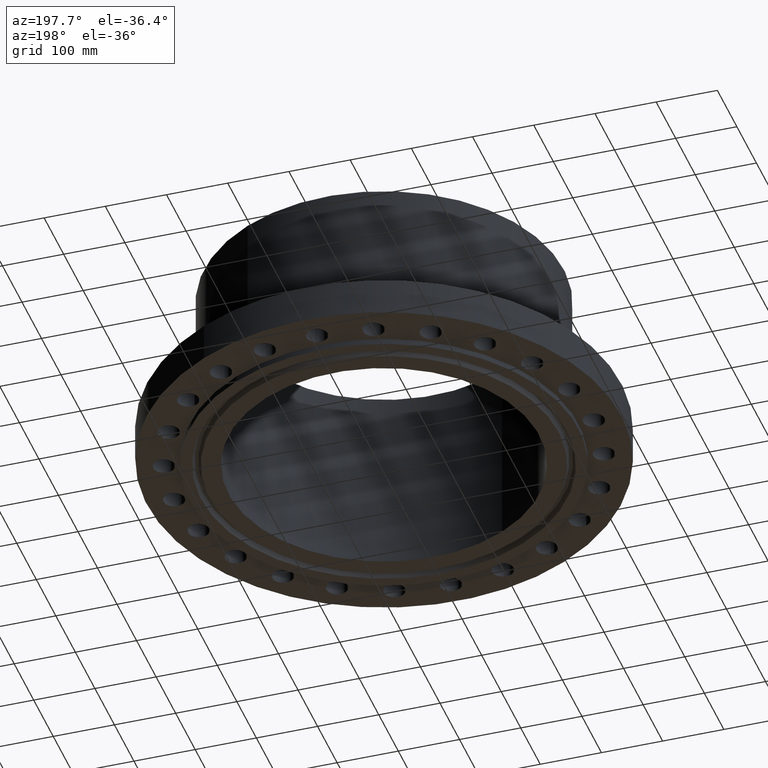
[diagram: clean part render]
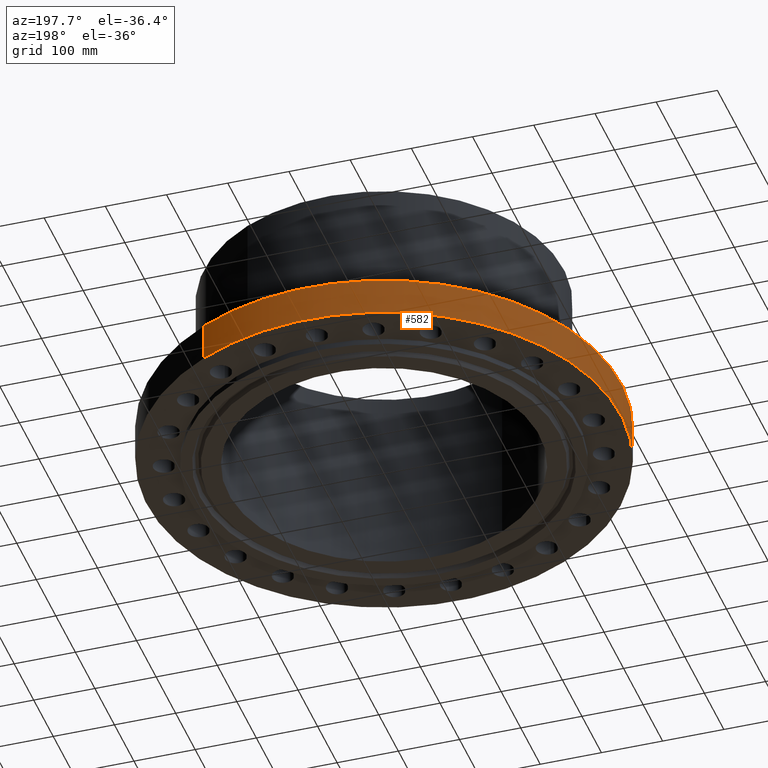
[diagram: same view with one face highlighted and labeled with its STEP entity id]
A machine part, auxiliary view. The second image highlights one B-rep face of the part: STEP entity #582.
In plain terms, the highlighted cylindrical surface (partial cylindrical patch) has radius 387.35 mm, axis along (0, 0, -1).
Its self-contained STEP definition (entity closure, byte-faithful):
#82=AXIS2_PLACEMENT_3D('Circle Axis2P3D',#80,#81,$) ;
#555=AXIS2_PLACEMENT_3D('Cylinder Axis2P3D',#552,#553,#554) ;
#566=AXIS2_PLACEMENT_3D('Circle Axis2P3D',#564,#565,$) ;
#80=CARTESIAN_POINT('Axis2P3D Location',(0.,0.,0.)) ;
#84=CARTESIAN_POINT('Vertex',(-7.31123946374,-13.3831340689,2.23792987641E-015)) ;
#86=CARTESIAN_POINT('Vertex',(7.31123946374,13.3831340689,2.23792987641E-015)) ;
#552=CARTESIAN_POINT('Axis2P3D Location',(0.,0.,5.78125000002)) ;
#557=CARTESIAN_POINT('Line Origine',(-7.31123946374,-13.3831340689,1.21875)) ;
#561=CARTESIAN_POINT('Vertex',(-7.31123946374,-13.3831340689,2.43750000001)) ;
#564=CARTESIAN_POINT('Axis2P3D Location',(0.,0.,2.43750000001)) ;
#568=CARTESIAN_POINT('Vertex',(7.31123946374,13.3831340689,2.43750000001)) ;
#571=CARTESIAN_POINT('Line Origine',(7.31123946374,13.3831340689,1.21875)) ;
#81=DIRECTION('Axis2P3D Direction',(0.,0.,-0.0393700787402)) ;
#553=DIRECTION('Axis2P3D Direction',(0.,0.,-0.0393700787402)) ;
#554=DIRECTION('Axis2P3D XDirection',(0.0188750212049,0.0345504945626,0.)) ;
#558=DIRECTION('Vector Direction',(0.,0.,-0.0393700787402)) ;
#565=DIRECTION('Axis2P3D Direction',(0.,0.,-0.0393700787402)) ;
#572=DIRECTION('Vector Direction',(0.,0.,-0.0393700787402)) ;
#559=VECTOR('Line Direction',#558,0.0393700787402) ;
#573=VECTOR('Line Direction',#572,0.0393700787402) ;
#577=ORIENTED_EDGE('',*,*,#88,.F.) ;
#578=ORIENTED_EDGE('',*,*,#563,.T.) ;
#579=ORIENTED_EDGE('',*,*,#570,.T.) ;
#580=ORIENTED_EDGE('',*,*,#575,.F.) ;
#582=ADVANCED_FACE('PartBody',(#581),#556,.T.) ;
#83=CIRCLE('generated circle',#82,15.2500000001) ;
#567=CIRCLE('generated circle',#566,15.2500000001) ;
#556=CYLINDRICAL_SURFACE('generated cylinder',#555,15.2500000001) ;
#88=EDGE_CURVE('',#85,#87,#83,.T.) ;
#563=EDGE_CURVE('',#85,#562,#560,.F.) ;
#570=EDGE_CURVE('',#562,#569,#567,.T.) ;
#575=EDGE_CURVE('',#87,#569,#574,.F.) ;
#576=EDGE_LOOP('',(#577,#578,#579,#580)) ;
#581=FACE_OUTER_BOUND('',#576,.T.) ;
#560=LINE('Line',#557,#559) ;
#574=LINE('Line',#571,#573) ;
#85=VERTEX_POINT('',#84) ;
#87=VERTEX_POINT('',#86) ;
#562=VERTEX_POINT('',#561) ;
#569=VERTEX_POINT('',#568) ;